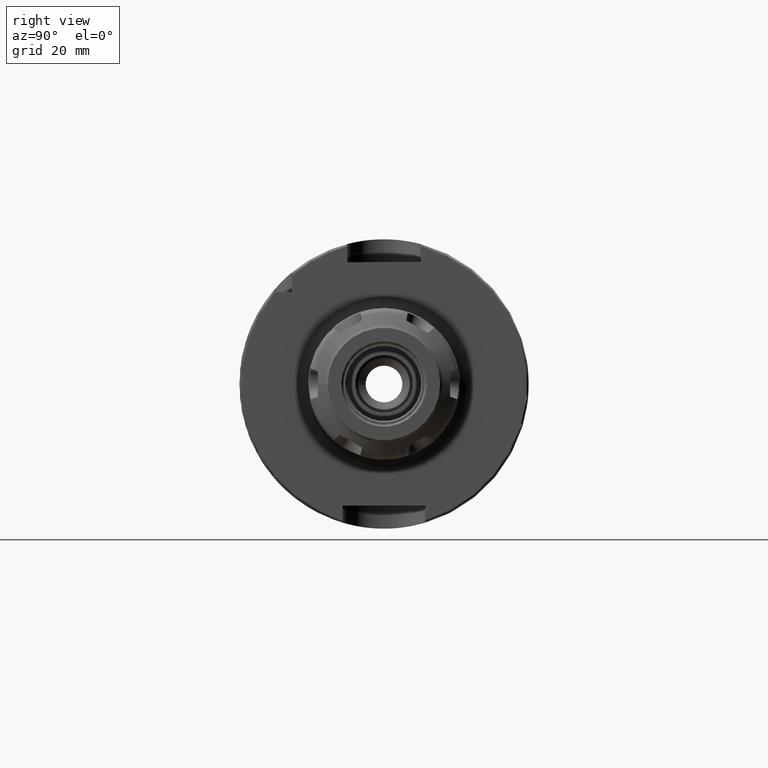
[diagram: clean part render]
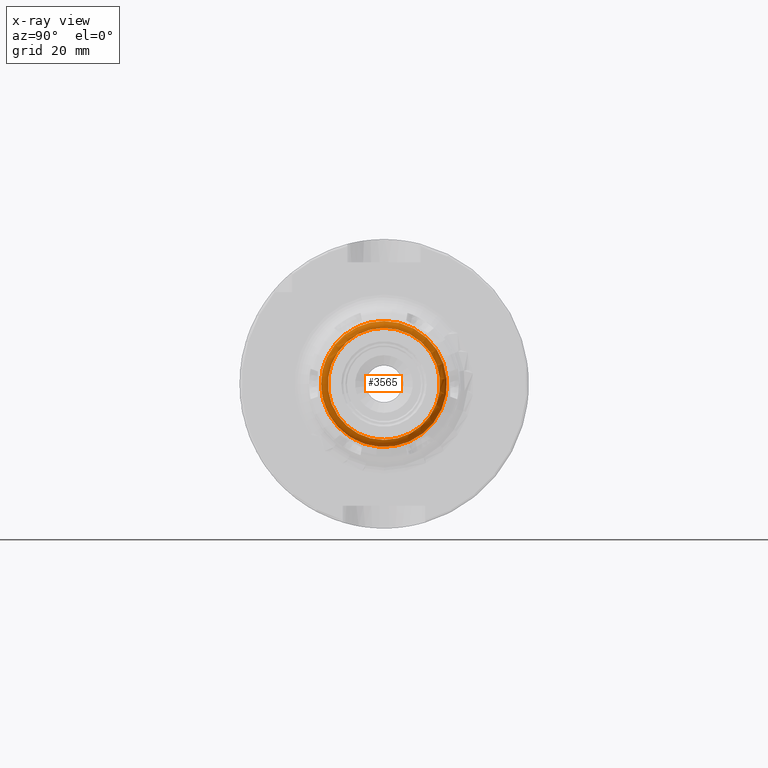
[diagram: x-ray — body ghosted, one internal face saturated and labeled with its STEP entity id]
A machine part, right view, then the same camera in x-ray: the body is ghosted and one INTERNAL B-rep face — a face not visible from any outside direction — is saturated and labeled: STEP entity #3565.
In plain terms, the highlighted toroidal blend (fillet) surface has major radius 12.2 mm and minor (blend) radius 1.5 mm.
Its self-contained STEP definition (entity closure, byte-faithful):
#289=TOROIDAL_SURFACE('',#4053,12.2,1.49999999999999);
#544=FACE_OUTER_BOUND('',#762,.T.);
#762=EDGE_LOOP('',(#3317,#3318,#3319,#3320,#3321));
#1336=CIRCLE('',#4034,13.7);
#1337=CIRCLE('',#4035,13.7);
#1344=CIRCLE('',#4052,12.2);
#1345=CIRCLE('',#4054,1.49999999999999);
#1693=VERTEX_POINT('',#7260);
#1694=VERTEX_POINT('',#7261);
#1698=VERTEX_POINT('',#7288);
#2225=EDGE_CURVE('',#1693,#1694,#1336,.T.);
#2226=EDGE_CURVE('',#1694,#1693,#1337,.T.);
#2238=EDGE_CURVE('',#1698,#1698,#1344,.T.);
#2239=EDGE_CURVE('',#1698,#1694,#1345,.T.);
#3317=ORIENTED_EDGE('',*,*,#2238,.T.);
#3318=ORIENTED_EDGE('',*,*,#2239,.T.);
#3319=ORIENTED_EDGE('',*,*,#2225,.F.);
#3320=ORIENTED_EDGE('',*,*,#2226,.F.);
#3321=ORIENTED_EDGE('',*,*,#2239,.F.);
#3565=ADVANCED_FACE('',(#544),#289,.F.);
#4034=AXIS2_PLACEMENT_3D('',#7262,#5044,#5045);
#4035=AXIS2_PLACEMENT_3D('',#7263,#5046,#5047);
#4052=AXIS2_PLACEMENT_3D('',#7289,#5085,#5086);
#4053=AXIS2_PLACEMENT_3D('',#7290,#5087,#5088);
#4054=AXIS2_PLACEMENT_3D('',#7291,#5089,#5090);
#5044=DIRECTION('center_axis',(1.,0.,0.));
#5045=DIRECTION('ref_axis',(0.,0.,-1.));
#5046=DIRECTION('center_axis',(1.,0.,0.));
#5047=DIRECTION('ref_axis',(0.,0.,-1.));
#5085=DIRECTION('center_axis',(1.,0.,0.));
#5086=DIRECTION('ref_axis',(0.,0.,-1.));
#5087=DIRECTION('center_axis',(1.,0.,0.));
#5088=DIRECTION('ref_axis',(0.,0.,-1.));
#5089=DIRECTION('center_axis',(0.,-1.,-1.22464679914735E-16));
#5090=DIRECTION('ref_axis',(0.,-1.22464679914735E-16,1.));
#7260=CARTESIAN_POINT('',(14.65,-13.7,-1.67776611483187E-15));
#7261=CARTESIAN_POINT('',(14.65,-1.67776611483187E-15,13.7));
#7262=CARTESIAN_POINT('Origin',(14.65,0.,0.));
#7263=CARTESIAN_POINT('Origin',(14.65,0.,0.));
#7288=CARTESIAN_POINT('',(16.15,-1.49406909495977E-15,12.2));
#7289=CARTESIAN_POINT('Origin',(16.15,0.,0.));
#7290=CARTESIAN_POINT('Origin',(14.65,0.,0.));
#7291=CARTESIAN_POINT('Origin',(14.65,-1.49406909495977E-15,12.2));